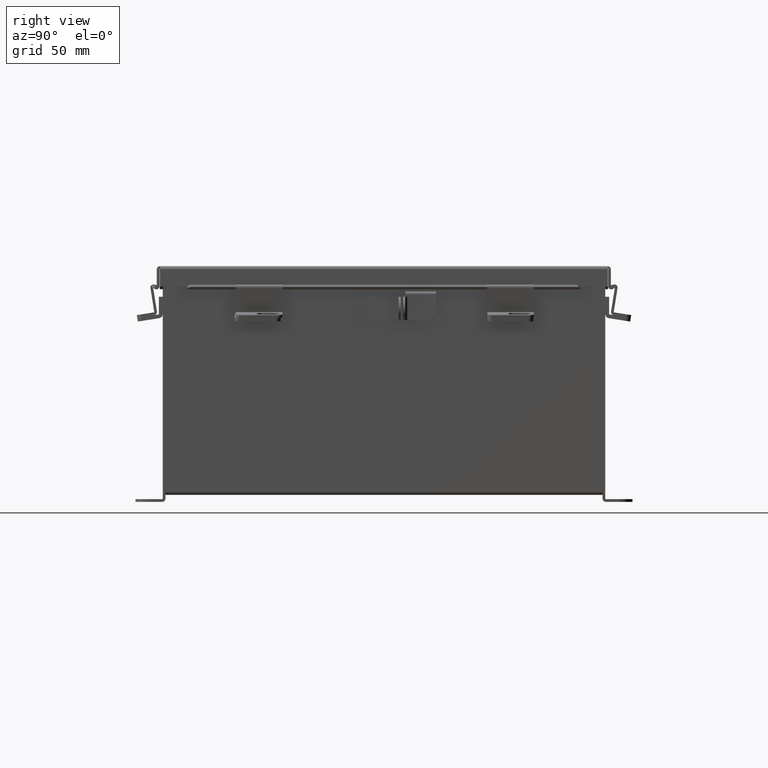
[diagram: clean part render]
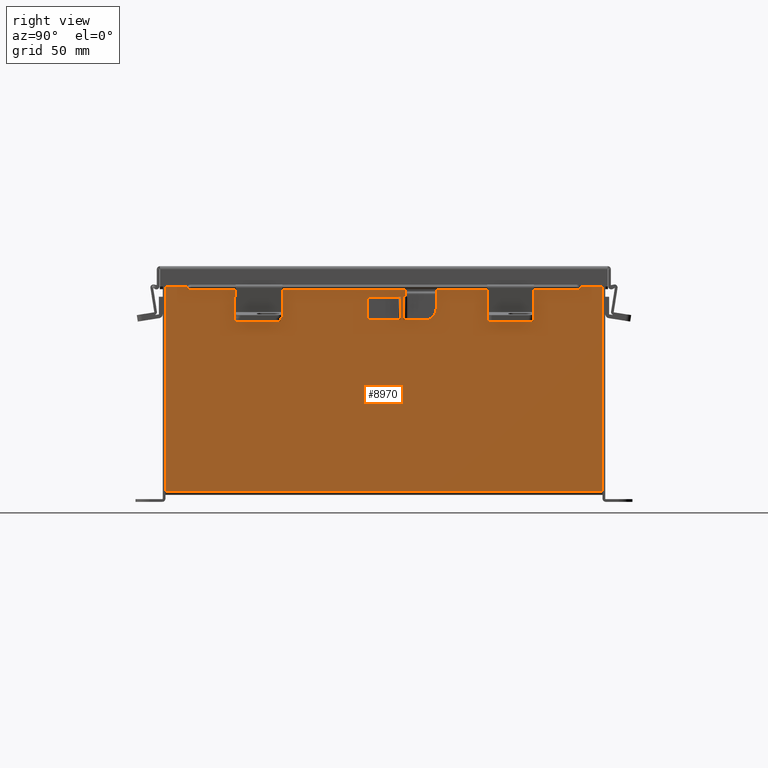
[diagram: same view with one face highlighted and labeled with its STEP entity id]
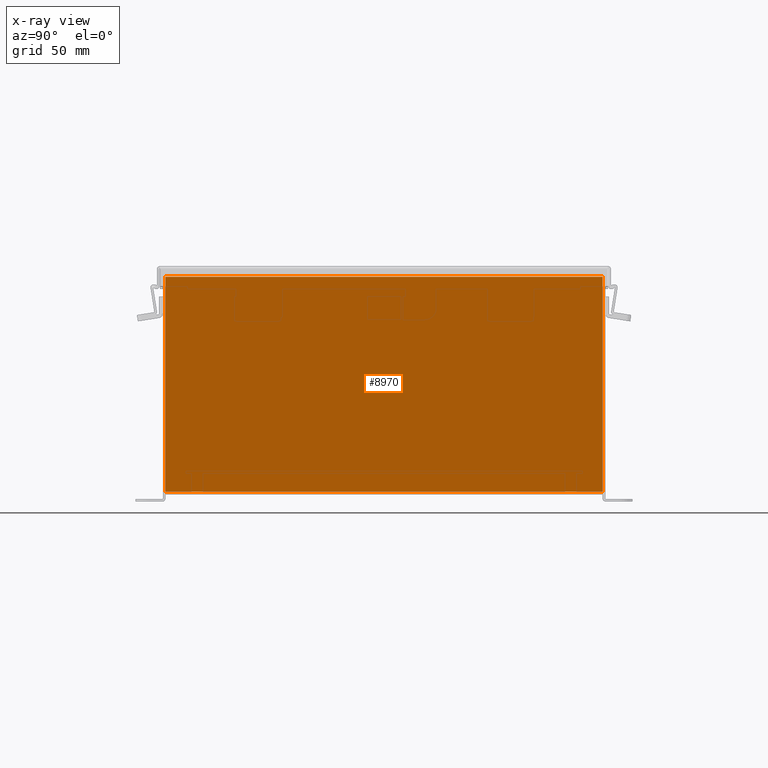
[diagram: x-ray of the same camera — body ghosted, the highlighted face saturated]
A machine part, right view. The second image highlights one B-rep face of the part: STEP entity #8970.
The next image is the same camera in x-ray: the body ghosted, the highlighted face saturated — about 0% of this face is hidden behind the body in this view.
In plain terms, the highlighted planar face has unit normal (-1, 0, 0).
Its self-contained STEP definition (entity closure, byte-faithful):
#351 = VERTEX_POINT ( 'NONE', #15235 ) ;
#532 = VERTEX_POINT ( 'NONE', #17075 ) ;
#673 = AXIS2_PLACEMENT_3D ( 'NONE', #4341, #11153, #3039 ) ;
#1074 = ORIENTED_EDGE ( 'NONE', *, *, #7622, .T. ) ;
#1664 = PLANE ( 'NONE',  #673 ) ;
#2210 = DIRECTION ( 'NONE',  ( -3.548703509357741800E-015, 0.0000000000000000000, -1.000000000000000000 ) ) ;
#2217 = EDGE_CURVE ( 'NONE', #11542, #351, #14478, .T. ) ;
#2711 = ORIENTED_EDGE ( 'NONE', *, *, #2217, .T. ) ;
#3039 = DIRECTION ( 'NONE',  ( 3.548703509357741000E-015, 0.0000000000000000000, 1.000000000000000000 ) ) ;
#3121 = LINE ( 'NONE', #11706, #13502 ) ;
#4286 = CARTESIAN_POINT ( 'NONE',  ( 6.000000000000002700, 5.925300000000000000, -2.044634350668448800E-014 ) ) ;
#4341 = CARTESIAN_POINT ( 'NONE',  ( 6.000000000000002700, 0.0000000000000000000, -2.155303471215803800E-014 ) ) ;
#4524 = CARTESIAN_POINT ( 'NONE',  ( 6.000000000000002700, 5.925299999999998200, 0.01300000000000094000 ) ) ;
#4682 = DIRECTION ( 'NONE',  ( 3.548703509357741800E-015, -1.867738689135653700E-016, 1.000000000000000000 ) ) ;
#5863 = LINE ( 'NONE', #12942, #11379 ) ;
#7462 = DIRECTION ( 'NONE',  ( -3.272245645671368800E-031, -1.000000000000000000, -9.220960942616457600E-017 ) ) ;
#7622 = EDGE_CURVE ( 'NONE', #11334, #532, #3121, .T. ) ;
#7687 = EDGE_CURVE ( 'NONE', #351, #11334, #9022, .T. ) ;
#7863 = EDGE_LOOP ( 'NONE', ( #17251, #1074, #9308, #2711 ) ) ;
#8970 = ADVANCED_FACE ( 'NONE', ( #9712 ), #1664, .F. ) ;
#9022 = LINE ( 'NONE', #9137, #12230 ) ;
#9137 = CARTESIAN_POINT ( 'NONE',  ( 6.000000000000022200, 5.925299999999998200, 5.837600000000000100 ) ) ;
#9308 = ORIENTED_EDGE ( 'NONE', *, *, #9885, .F. ) ;
#9712 = FACE_OUTER_BOUND ( 'NONE', #7863, .T. ) ;
#9885 = EDGE_CURVE ( 'NONE', #11542, #532, #5863, .T. ) ;
#10044 = VECTOR ( 'NONE', #4682, 39.37007874015748100 ) ;
#10510 = DIRECTION ( 'NONE',  ( -0.0000000000000000000, -1.000000000000000000, -0.0000000000000000000 ) ) ;
#11153 = DIRECTION ( 'NONE',  ( -1.000000000000000000, 0.0000000000000000000, 3.548703509357741000E-015 ) ) ;
#11334 = VERTEX_POINT ( 'NONE', #13599 ) ;
#11379 = VECTOR ( 'NONE', #7462, 39.37007874015748100 ) ;
#11542 = VERTEX_POINT ( 'NONE', #4524 ) ;
#11706 = CARTESIAN_POINT ( 'NONE',  ( 6.000000000000002700, -5.925300000000000000, -2.155303471215803800E-014 ) ) ;
#12230 = VECTOR ( 'NONE', #10510, 39.37007874015748100 ) ;
#12942 = CARTESIAN_POINT ( 'NONE',  ( 6.000000000000002700, -5.925300000000000000, 0.01299999999999984700 ) ) ;
#13502 = VECTOR ( 'NONE', #2210, 39.37007874015748100 ) ;
#13599 = CARTESIAN_POINT ( 'NONE',  ( 6.000000000000023100, -5.925300000000000000, 5.837600000000000100 ) ) ;
#14478 = LINE ( 'NONE', #4286, #10044 ) ;
#15235 = CARTESIAN_POINT ( 'NONE',  ( 6.000000000000022200, 5.925299999999997300, 5.837600000000000100 ) ) ;
#17075 = CARTESIAN_POINT ( 'NONE',  ( 6.000000000000002700, -5.925300000000000000, 0.01299999999999989200 ) ) ;
#17251 = ORIENTED_EDGE ( 'NONE', *, *, #7687, .T. ) ;